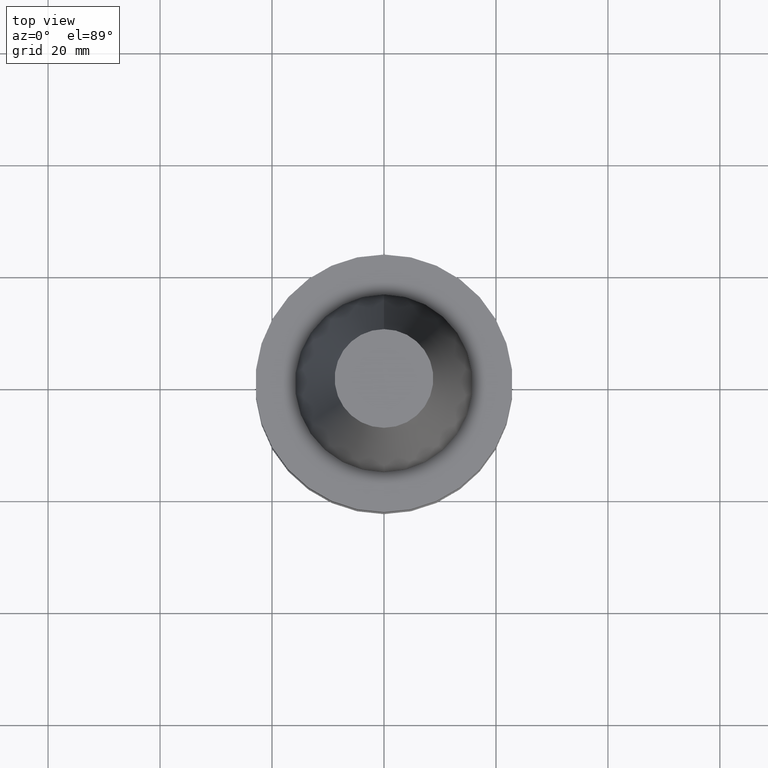
[diagram: clean part render]
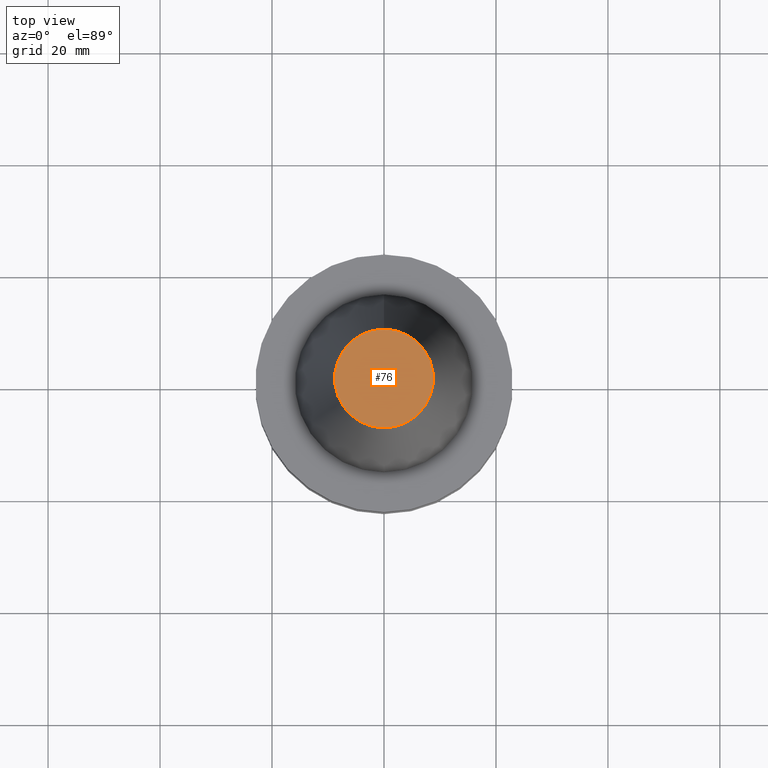
[diagram: same view with one face highlighted and labeled with its STEP entity id]
A machine part, top view. The second image highlights one B-rep face of the part: STEP entity #76.
In plain terms, the highlighted planar face has unit normal (-0, -0, 1).
Its self-contained STEP definition (entity closure, byte-faithful):
#76=ADVANCED_FACE('',(#95),#96,.T.);
#95=FACE_OUTER_BOUND('',#144,.T.);
#96=PLANE('',#145);
#144=EDGE_LOOP('',(#195));
#145=AXIS2_PLACEMENT_3D('',#196,#197,#198);
#195=ORIENTED_EDGE('',*,*,#275,.F.);
#196=CARTESIAN_POINT('',(-2.96364525393659E-015,4.40825000099333,48.4));
#197=DIRECTION('',(-6.12323399573677E-017,-1.22464679914735E-016,1.0));
#198=DIRECTION('',(1.23259516440783E-032,-1.0,-1.22464679914735E-016));
#275=EDGE_CURVE('',#292,#292,#293,.T.);
#292=VERTEX_POINT('',#324);
#293=CIRCLE('',#325,8.81650000198667);
#324=CARTESIAN_POINT('',(-2.96364525393659E-015,8.81650000198666,48.4));
#325=AXIS2_PLACEMENT_3D('',#357,#358,#359);
#357=CARTESIAN_POINT('',(-2.96364525393659E-015,-5.92729050787319E-015,48.4));
#358=DIRECTION('',(6.12323399573676E-017,1.22464679914735E-016,-1.0));
#359=DIRECTION('',(-1.23259516440783E-032,1.0,1.22464679914735E-016));